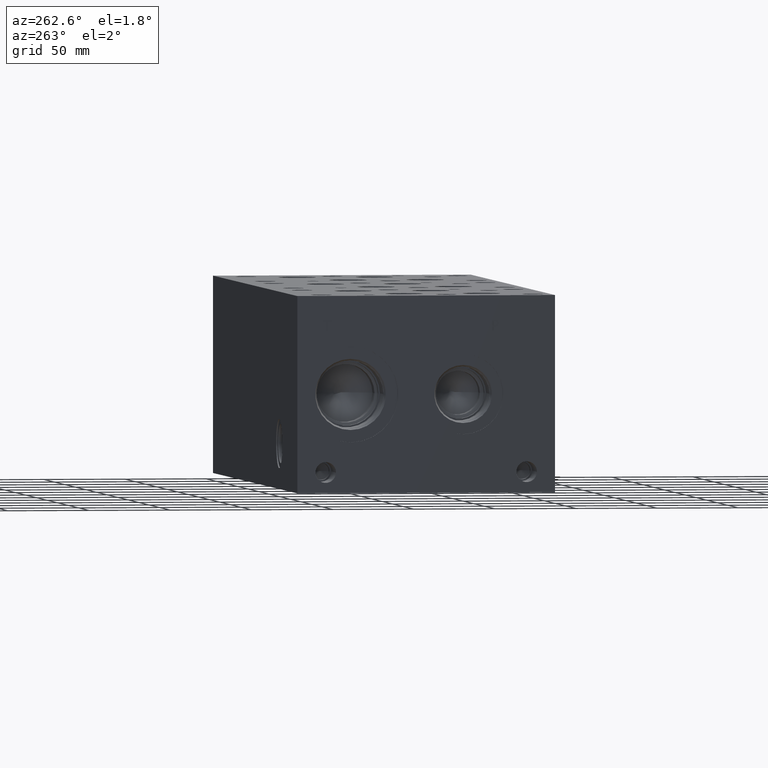
[diagram: clean part render]
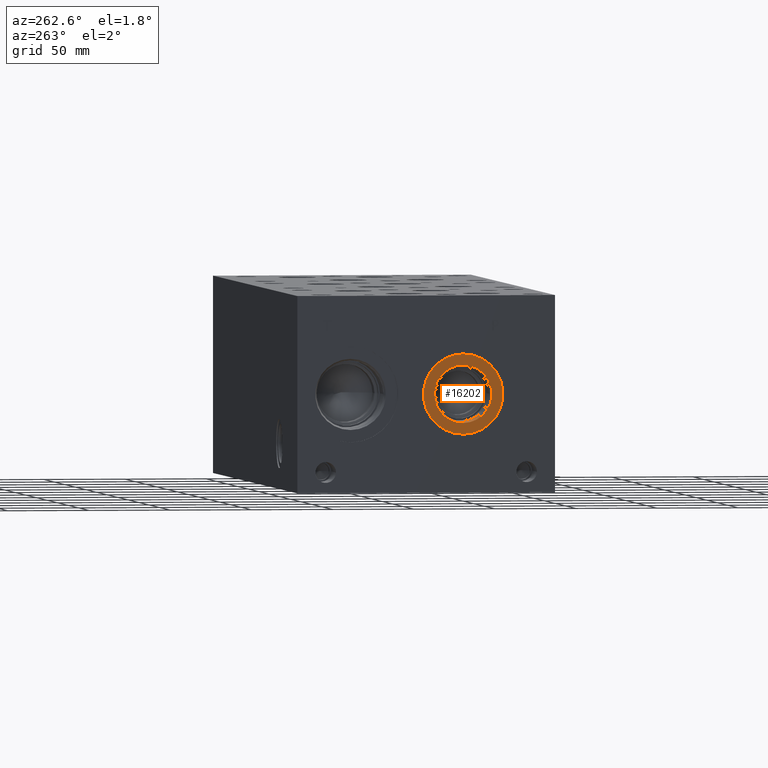
[diagram: same view with one face highlighted and labeled with its STEP entity id]
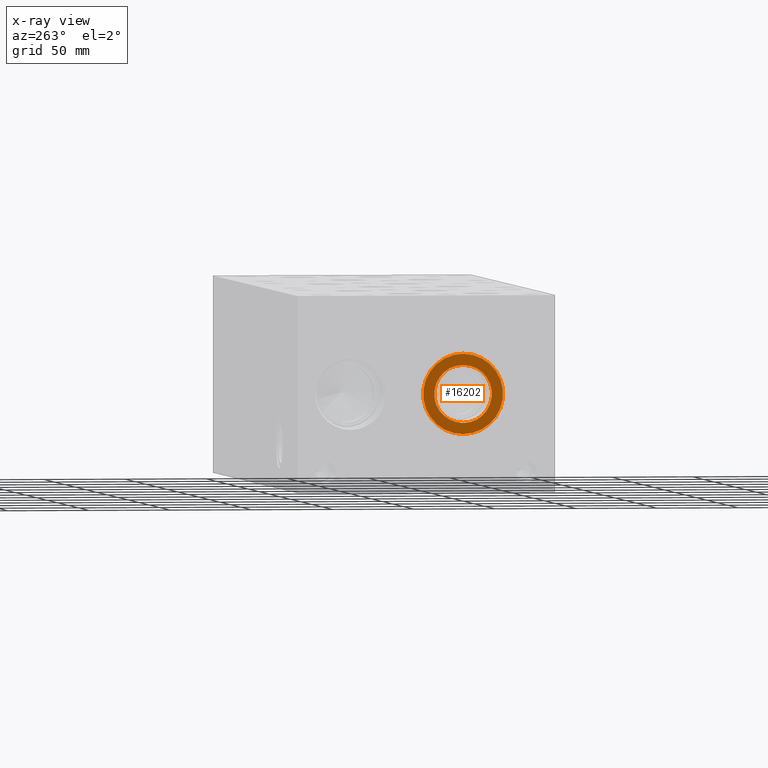
[diagram: x-ray of the same camera — body ghosted, the highlighted face saturated]
A machine part, auxiliary view. The second image highlights one B-rep face of the part: STEP entity #16202.
The next image is the same camera in x-ray: the body ghosted, the highlighted face saturated — about 0% of this face is hidden behind the body in this view.
In plain terms, the highlighted planar face has unit normal (1, 0, 0).
Its self-contained STEP definition (entity closure, byte-faithful):
#389=CIRCLE('',#17005,24.5618);
#390=CIRCLE('',#17006,24.5618);
#391=CIRCLE('',#17008,17.7546);
#392=CIRCLE('',#17009,17.7546);
#844=FACE_BOUND('',#3101,.T.);
#2157=FACE_OUTER_BOUND('',#3100,.T.);
#3100=EDGE_LOOP('',(#13435,#13436));
#3101=EDGE_LOOP('',(#13437,#13438));
#7331=VERTEX_POINT('',#27469);
#7332=VERTEX_POINT('',#27471);
#7333=VERTEX_POINT('',#27475);
#7334=VERTEX_POINT('',#27476);
#9474=EDGE_CURVE('',#7331,#7332,#389,.T.);
#9475=EDGE_CURVE('',#7332,#7331,#390,.T.);
#9476=EDGE_CURVE('',#7333,#7334,#391,.T.);
#9477=EDGE_CURVE('',#7334,#7333,#392,.T.);
#13435=ORIENTED_EDGE('',*,*,#9475,.F.);
#13436=ORIENTED_EDGE('',*,*,#9474,.F.);
#13437=ORIENTED_EDGE('',*,*,#9476,.T.);
#13438=ORIENTED_EDGE('',*,*,#9477,.T.);
#14989=PLANE('',#17007);
#16202=ADVANCED_FACE('',(#2157,#844),#14989,.F.);
#17005=AXIS2_PLACEMENT_3D('',#27472,#19908,#19909);
#17006=AXIS2_PLACEMENT_3D('',#27473,#19910,#19911);
#17007=AXIS2_PLACEMENT_3D('',#27474,#19912,#19913);
#17008=AXIS2_PLACEMENT_3D('',#27477,#19914,#19915);
#17009=AXIS2_PLACEMENT_3D('',#27478,#19916,#19917);
#19908=DIRECTION('center_axis',(1.,0.,0.));
#19909=DIRECTION('ref_axis',(0.,0.,-1.));
#19910=DIRECTION('center_axis',(1.,0.,0.));
#19911=DIRECTION('ref_axis',(0.,0.,-1.));
#19912=DIRECTION('center_axis',(1.,0.,0.));
#19913=DIRECTION('ref_axis',(0.,0.,-1.));
#19914=DIRECTION('center_axis',(1.,0.,0.));
#19915=DIRECTION('ref_axis',(0.,0.,-1.));
#19916=DIRECTION('center_axis',(1.,0.,0.));
#19917=DIRECTION('ref_axis',(0.,0.,-1.));
#27469=CARTESIAN_POINT('',(0.7874,56.4896,35.7632));
#27471=CARTESIAN_POINT('',(0.7874,56.4896,84.8868));
#27472=CARTESIAN_POINT('Origin',(0.7874,56.4896,60.325));
#27473=CARTESIAN_POINT('Origin',(0.7874,56.4896,60.325));
#27474=CARTESIAN_POINT('Origin',(0.7874,56.4896,78.0796));
#27475=CARTESIAN_POINT('',(0.7874,56.4896,78.0796));
#27476=CARTESIAN_POINT('',(0.787400000000001,56.4896,42.5704));
#27477=CARTESIAN_POINT('Origin',(0.7874,56.4896,60.325));
#27478=CARTESIAN_POINT('Origin',(0.7874,56.4896,60.325));